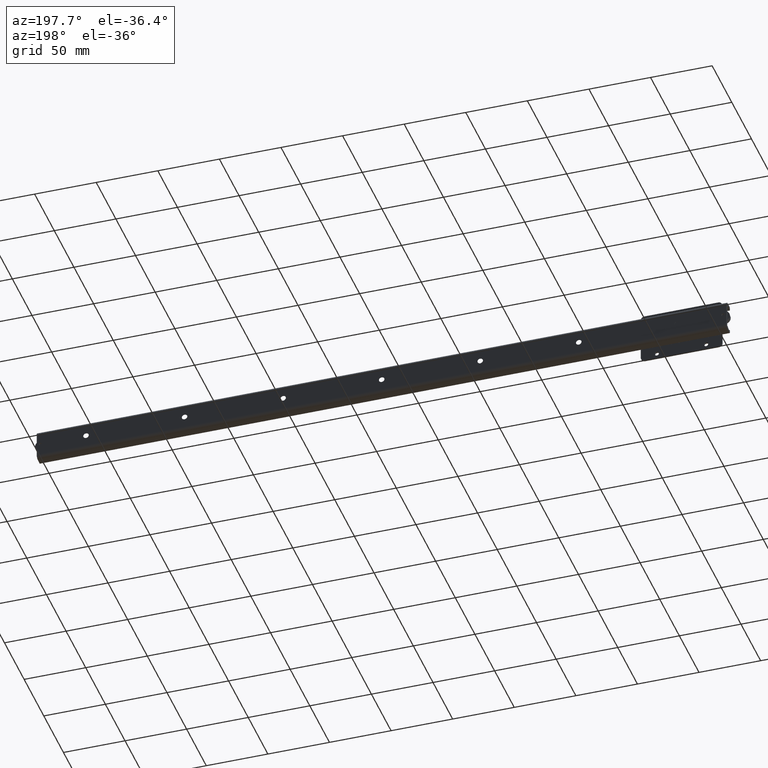
[diagram: clean part render]
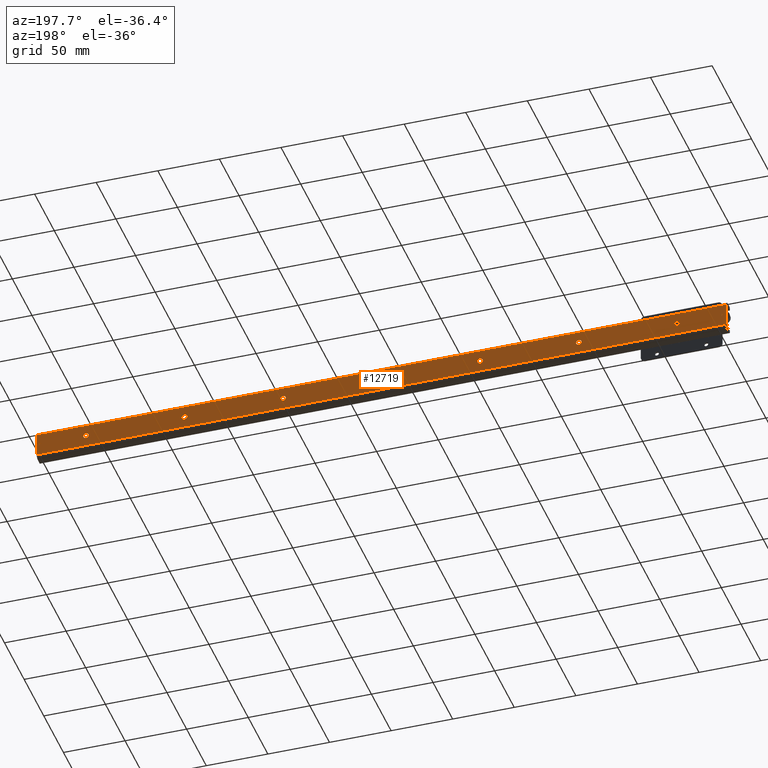
[diagram: same view with one face highlighted and labeled with its STEP entity id]
A machine part, auxiliary view. The second image highlights one B-rep face of the part: STEP entity #12719.
In plain terms, the highlighted face is a freeform B-spline surface patch.
Its self-contained STEP definition (entity closure, byte-faithful):
#9919=CARTESIAN_POINT('',(522.245803296396160,4.791111E-014,-0.137359214821563));
#9920=VERTEX_POINT('',#9919);
#9921=CARTESIAN_POINT('',(520.0,4.790612E-014,2.249999999999975));
#9922=VERTEX_POINT('',#9921);
#9923=CARTESIAN_POINT('',(522.245803296396050,4.790612E-014,-0.137359214821563));
#9924=CARTESIAN_POINT('',(522.250000000000000,4.790612E-014,-0.068743717857109));
#9925=CARTESIAN_POINT('',(522.250000000000000,4.790612E-014,0.0));
#9926=CARTESIAN_POINT('',(522.249999999999890,4.790612E-014,2.249999999999974));
#9927=CARTESIAN_POINT('',(520.0,4.790612E-014,2.249999999999975));
#9935=(BOUNDED_CURVE()B_SPLINE_CURVE(2,(#9923,#9924,#9925,#9926,#9927),.UNSPECIFIED.,.F.,.U.)B_SPLINE_CURVE_WITH_KNOTS((3,2,3),(0.239332962175269,0.250000000000000,0.500000000000000),.UNSPECIFIED.)CURVE()GEOMETRIC_REPRESENTATION_ITEM()RATIONAL_B_SPLINE_CURVE((0.976072041530252,0.987502787825238,1.0,0.707106781186548,1.0))REPRESENTATION_ITEM(''));
#9936=EDGE_CURVE('',#9920,#9922,#9935,.T.);
#9977=CARTESIAN_POINT('',(517.754196703603950,4.791111E-014,0.137359214821563));
#9978=VERTEX_POINT('',#9977);
#9984=CARTESIAN_POINT('',(520.0,4.790612E-014,2.249999999999975));
#9985=CARTESIAN_POINT('',(517.883411350281900,4.790612E-014,2.249999999999974));
#9986=CARTESIAN_POINT('',(517.754196703603950,4.790612E-014,0.137359214821562));
#9994=(BOUNDED_CURVE()B_SPLINE_CURVE(2,(#9984,#9985,#9986),.UNSPECIFIED.,.F.,.U.)B_SPLINE_CURVE_WITH_KNOTS((3,3),(0.500000000000000,0.739332962175269),.UNSPECIFIED.)CURVE()GEOMETRIC_REPRESENTATION_ITEM()RATIONAL_B_SPLINE_CURVE((1.0,0.719603993361309,0.976072041530252))REPRESENTATION_ITEM(''));
#9995=EDGE_CURVE('',#9922,#9978,#9994,.T.);
#10018=CARTESIAN_POINT('',(520.0,4.790612E-014,-2.249999999999975));
#10019=VERTEX_POINT('',#10018);
#10020=CARTESIAN_POINT('',(520.0,4.790612E-014,-2.249999999999975));
#10021=CARTESIAN_POINT('',(522.116588649718100,4.790612E-014,-2.249999999999975));
#10022=CARTESIAN_POINT('',(522.245803296396050,4.790612E-014,-0.137359214821556));
#10030=(BOUNDED_CURVE()B_SPLINE_CURVE(2,(#10020,#10021,#10022),.UNSPECIFIED.,.F.,.U.)B_SPLINE_CURVE_WITH_KNOTS((3,3),(0.0,0.239332962175269),.UNSPECIFIED.)CURVE()GEOMETRIC_REPRESENTATION_ITEM()RATIONAL_B_SPLINE_CURVE((1.0,0.719603993361309,0.976072041530253))REPRESENTATION_ITEM(''));
#10031=EDGE_CURVE('',#10019,#9920,#10030,.T.);
#10033=CARTESIAN_POINT('',(517.754196703603950,4.790612E-014,0.137359214821562));
#10034=CARTESIAN_POINT('',(517.750000000000000,4.790612E-014,0.068743717857109));
#10035=CARTESIAN_POINT('',(517.750000000000000,4.790612E-014,0.0));
#10036=CARTESIAN_POINT('',(517.750000000000000,4.790612E-014,-2.249999999999974));
#10037=CARTESIAN_POINT('',(520.0,4.790612E-014,-2.249999999999975));
#10045=(BOUNDED_CURVE()B_SPLINE_CURVE(2,(#10033,#10034,#10035,#10036,#10037),.UNSPECIFIED.,.F.,.U.)B_SPLINE_CURVE_WITH_KNOTS((3,2,3),(0.739332962175269,0.750000000000000,1.0),.UNSPECIFIED.)CURVE()GEOMETRIC_REPRESENTATION_ITEM()RATIONAL_B_SPLINE_CURVE((0.976072041530252,0.987502787825238,1.0,0.707106781186548,1.0))REPRESENTATION_ITEM(''));
#10046=EDGE_CURVE('',#9978,#10019,#10045,.T.);
#10223=CARTESIAN_POINT('',(442.245803296396100,4.790244E-014,-0.137359214821558));
#10224=VERTEX_POINT('',#10223);
#10225=CARTESIAN_POINT('',(440.0,4.790612E-014,2.249999999999975));
#10226=VERTEX_POINT('',#10225);
#10227=CARTESIAN_POINT('',(442.245803296396160,4.790612E-014,-0.137359214821558));
#10228=CARTESIAN_POINT('',(442.250000000000060,4.790612E-014,-0.068743717857107));
#10229=CARTESIAN_POINT('',(442.250000000000000,4.790612E-014,0.0));
#10230=CARTESIAN_POINT('',(442.249999999999890,4.790612E-014,2.249999999999974));
#10231=CARTESIAN_POINT('',(440.0,4.790612E-014,2.249999999999975));
#10239=(BOUNDED_CURVE()B_SPLINE_CURVE(2,(#10227,#10228,#10229,#10230,#10231),.UNSPECIFIED.,.F.,.U.)B_SPLINE_CURVE_WITH_KNOTS((3,2,3),(0.239332962175269,0.250000000000000,0.500000000000000),.UNSPECIFIED.)CURVE()GEOMETRIC_REPRESENTATION_ITEM()RATIONAL_B_SPLINE_CURVE((0.976072041530253,0.987502787825239,1.0,0.707106781186548,1.0))REPRESENTATION_ITEM(''));
#10240=EDGE_CURVE('',#10224,#10226,#10239,.T.);
#10281=CARTESIAN_POINT('',(437.754196703603900,4.791111E-014,0.137359214821562));
#10282=VERTEX_POINT('',#10281);
#10288=CARTESIAN_POINT('',(440.0,4.790612E-014,2.249999999999975));
#10289=CARTESIAN_POINT('',(437.883411350282020,4.790612E-014,2.249999999999974));
#10290=CARTESIAN_POINT('',(437.754196703603950,4.790612E-014,0.137359214821562));
#10298=(BOUNDED_CURVE()B_SPLINE_CURVE(2,(#10288,#10289,#10290),.UNSPECIFIED.,.F.,.U.)B_SPLINE_CURVE_WITH_KNOTS((3,3),(0.500000000000000,0.739332962175269),.UNSPECIFIED.)CURVE()GEOMETRIC_REPRESENTATION_ITEM()RATIONAL_B_SPLINE_CURVE((1.0,0.719603993361309,0.976072041530252))REPRESENTATION_ITEM(''));
#10299=EDGE_CURVE('',#10226,#10282,#10298,.T.);
#10322=CARTESIAN_POINT('',(440.0,4.790612E-014,-2.249999999999975));
#10323=VERTEX_POINT('',#10322);
#10324=CARTESIAN_POINT('',(440.0,4.790612E-014,-2.249999999999975));
#10325=CARTESIAN_POINT('',(442.116588649718100,4.790612E-014,-2.249999999999976));
#10326=CARTESIAN_POINT('',(442.245803296396160,4.790612E-014,-0.137359214821558));
#10334=(BOUNDED_CURVE()B_SPLINE_CURVE(2,(#10324,#10325,#10326),.UNSPECIFIED.,.F.,.U.)B_SPLINE_CURVE_WITH_KNOTS((3,3),(0.0,0.239332962175269),.UNSPECIFIED.)CURVE()GEOMETRIC_REPRESENTATION_ITEM()RATIONAL_B_SPLINE_CURVE((1.0,0.719603993361309,0.976072041530253))REPRESENTATION_ITEM(''));
#10335=EDGE_CURVE('',#10323,#10224,#10334,.T.);
#10337=CARTESIAN_POINT('',(437.754196703603950,4.790612E-014,0.137359214821562));
#10338=CARTESIAN_POINT('',(437.750000000000060,4.790612E-014,0.068743717857109));
#10339=CARTESIAN_POINT('',(437.750000000000000,4.790612E-014,0.0));
#10340=CARTESIAN_POINT('',(437.750000000000170,4.790612E-014,-2.249999999999974));
#10341=CARTESIAN_POINT('',(440.0,4.790612E-014,-2.249999999999975));
#10349=(BOUNDED_CURVE()B_SPLINE_CURVE(2,(#10337,#10338,#10339,#10340,#10341),.UNSPECIFIED.,.F.,.U.)B_SPLINE_CURVE_WITH_KNOTS((3,2,3),(0.739332962175269,0.750000000000000,1.0),.UNSPECIFIED.)CURVE()GEOMETRIC_REPRESENTATION_ITEM()RATIONAL_B_SPLINE_CURVE((0.976072041530252,0.987502787825238,1.0,0.707106781186548,1.0))REPRESENTATION_ITEM(''));
#10350=EDGE_CURVE('',#10282,#10323,#10349,.T.);
#10527=CARTESIAN_POINT('',(362.245803296396100,4.791111E-014,-0.137359214821558));
#10528=VERTEX_POINT('',#10527);
#10529=CARTESIAN_POINT('',(360.0,4.790612E-014,2.249999999999975));
#10530=VERTEX_POINT('',#10529);
#10531=CARTESIAN_POINT('',(362.245803296396100,4.790612E-014,-0.137359214821554));
#10532=CARTESIAN_POINT('',(362.250000000000000,4.790612E-014,-0.068743717857105));
#10533=CARTESIAN_POINT('',(362.249999999999890,4.790612E-014,0.0));
#10534=CARTESIAN_POINT('',(362.249999999999890,4.790612E-014,2.249999999999974));
#10535=CARTESIAN_POINT('',(360.0,4.790612E-014,2.249999999999975));
#10543=(BOUNDED_CURVE()B_SPLINE_CURVE(2,(#10531,#10532,#10533,#10534,#10535),.UNSPECIFIED.,.F.,.U.)B_SPLINE_CURVE_WITH_KNOTS((3,2,3),(0.239332962175269,0.250000000000000,0.500000000000000),.UNSPECIFIED.)CURVE()GEOMETRIC_REPRESENTATION_ITEM()RATIONAL_B_SPLINE_CURVE((0.976072041530253,0.987502787825239,1.0,0.707106781186548,1.0))REPRESENTATION_ITEM(''));
#10544=EDGE_CURVE('',#10528,#10530,#10543,.T.);
#10585=CARTESIAN_POINT('',(357.754196703603900,4.791111E-014,0.137359214821562));
#10586=VERTEX_POINT('',#10585);
#10592=CARTESIAN_POINT('',(360.0,4.790612E-014,2.249999999999975));
#10593=CARTESIAN_POINT('',(357.883411350281960,4.790612E-014,2.249999999999975));
#10594=CARTESIAN_POINT('',(357.754196703603950,4.790612E-014,0.137359214821558));
#10602=(BOUNDED_CURVE()B_SPLINE_CURVE(2,(#10592,#10593,#10594),.UNSPECIFIED.,.F.,.U.)B_SPLINE_CURVE_WITH_KNOTS((3,3),(0.500000000000000,0.739332962175269),.UNSPECIFIED.)CURVE()GEOMETRIC_REPRESENTATION_ITEM()RATIONAL_B_SPLINE_CURVE((1.0,0.719603993361309,0.976072041530253))REPRESENTATION_ITEM(''));
#10603=EDGE_CURVE('',#10530,#10586,#10602,.T.);
#10626=CARTESIAN_POINT('',(360.0,4.790612E-014,-2.249999999999975));
#10627=VERTEX_POINT('',#10626);
#10628=CARTESIAN_POINT('',(360.0,4.790612E-014,-2.249999999999975));
#10629=CARTESIAN_POINT('',(362.116588649718150,4.790612E-014,-2.249999999999976));
#10630=CARTESIAN_POINT('',(362.245803296396100,4.790612E-014,-0.137359214821554));
#10638=(BOUNDED_CURVE()B_SPLINE_CURVE(2,(#10628,#10629,#10630),.UNSPECIFIED.,.F.,.U.)B_SPLINE_CURVE_WITH_KNOTS((3,3),(0.0,0.239332962175269),.UNSPECIFIED.)CURVE()GEOMETRIC_REPRESENTATION_ITEM()RATIONAL_B_SPLINE_CURVE((1.0,0.719603993361308,0.976072041530253))REPRESENTATION_ITEM(''));
#10639=EDGE_CURVE('',#10627,#10528,#10638,.T.);
#10641=CARTESIAN_POINT('',(357.754196703603950,4.790612E-014,0.137359214821558));
#10642=CARTESIAN_POINT('',(357.750000000000000,4.790612E-014,0.068743717857107));
#10643=CARTESIAN_POINT('',(357.750000000000000,4.790612E-014,0.0));
#10644=CARTESIAN_POINT('',(357.750000000000000,4.790612E-014,-2.249999999999974));
#10645=CARTESIAN_POINT('',(360.0,4.790612E-014,-2.249999999999975));
#10653=(BOUNDED_CURVE()B_SPLINE_CURVE(2,(#10641,#10642,#10643,#10644,#10645),.UNSPECIFIED.,.F.,.U.)B_SPLINE_CURVE_WITH_KNOTS((3,2,3),(0.739332962175269,0.750000000000000,1.0),.UNSPECIFIED.)CURVE()GEOMETRIC_REPRESENTATION_ITEM()RATIONAL_B_SPLINE_CURVE((0.976072041530253,0.987502787825239,1.0,0.707106781186548,1.0))REPRESENTATION_ITEM(''));
#10654=EDGE_CURVE('',#10586,#10627,#10653,.T.);
#10831=CARTESIAN_POINT('',(282.245803296396100,4.791111E-014,-0.137359214821559));
#10832=VERTEX_POINT('',#10831);
#10833=CARTESIAN_POINT('',(280.0,4.790612E-014,2.249999999999975));
#10834=VERTEX_POINT('',#10833);
#10835=CARTESIAN_POINT('',(282.245803296396050,4.790612E-014,-0.137359214821556));
#10836=CARTESIAN_POINT('',(282.250000000000000,4.790612E-014,-0.068743717857106));
#10837=CARTESIAN_POINT('',(282.250000000000000,4.790612E-014,0.0));
#10838=CARTESIAN_POINT('',(282.250000000000060,4.790612E-014,2.249999999999974));
#10839=CARTESIAN_POINT('',(280.0,4.790612E-014,2.249999999999975));
#10847=(BOUNDED_CURVE()B_SPLINE_CURVE(2,(#10835,#10836,#10837,#10838,#10839),.UNSPECIFIED.,.F.,.U.)B_SPLINE_CURVE_WITH_KNOTS((3,2,3),(0.239332962175269,0.250000000000000,0.500000000000000),.UNSPECIFIED.)CURVE()GEOMETRIC_REPRESENTATION_ITEM()RATIONAL_B_SPLINE_CURVE((0.976072041530253,0.987502787825239,1.0,0.707106781186548,1.0))REPRESENTATION_ITEM(''));
#10848=EDGE_CURVE('',#10832,#10834,#10847,.T.);
#10889=CARTESIAN_POINT('',(277.754196703604010,4.791111E-014,0.137359214821559));
#10890=VERTEX_POINT('',#10889);
#10896=CARTESIAN_POINT('',(280.0,4.790612E-014,2.249999999999975));
#10897=CARTESIAN_POINT('',(277.883411350281900,4.790612E-014,2.249999999999976));
#10898=CARTESIAN_POINT('',(277.754196703603950,4.790612E-014,0.137359214821559));
#10906=(BOUNDED_CURVE()B_SPLINE_CURVE(2,(#10896,#10897,#10898),.UNSPECIFIED.,.F.,.U.)B_SPLINE_CURVE_WITH_KNOTS((3,3),(0.500000000000000,0.739332962175269),.UNSPECIFIED.)CURVE()GEOMETRIC_REPRESENTATION_ITEM()RATIONAL_B_SPLINE_CURVE((1.0,0.719603993361309,0.976072041530253))REPRESENTATION_ITEM(''));
#10907=EDGE_CURVE('',#10834,#10890,#10906,.T.);
#10930=CARTESIAN_POINT('',(280.0,4.790612E-014,-2.249999999999975));
#10931=VERTEX_POINT('',#10930);
#10932=CARTESIAN_POINT('',(280.0,4.790612E-014,-2.249999999999975));
#10933=CARTESIAN_POINT('',(282.116588649718150,4.790612E-014,-2.249999999999975));
#10934=CARTESIAN_POINT('',(282.245803296396050,4.790612E-014,-0.137359214821556));
#10942=(BOUNDED_CURVE()B_SPLINE_CURVE(2,(#10932,#10933,#10934),.UNSPECIFIED.,.F.,.U.)B_SPLINE_CURVE_WITH_KNOTS((3,3),(0.0,0.239332962175269),.UNSPECIFIED.)CURVE()GEOMETRIC_REPRESENTATION_ITEM()RATIONAL_B_SPLINE_CURVE((1.0,0.719603993361309,0.976072041530253))REPRESENTATION_ITEM(''));
#10943=EDGE_CURVE('',#10931,#10832,#10942,.T.);
#10945=CARTESIAN_POINT('',(277.754196703603950,4.790612E-014,0.137359214821559));
#10946=CARTESIAN_POINT('',(277.750000000000000,4.790612E-014,0.068743717857108));
#10947=CARTESIAN_POINT('',(277.750000000000110,4.790612E-014,0.0));
#10948=CARTESIAN_POINT('',(277.750000000000000,4.790612E-014,-2.249999999999974));
#10949=CARTESIAN_POINT('',(280.0,4.790612E-014,-2.249999999999975));
#10957=(BOUNDED_CURVE()B_SPLINE_CURVE(2,(#10945,#10946,#10947,#10948,#10949),.UNSPECIFIED.,.F.,.U.)B_SPLINE_CURVE_WITH_KNOTS((3,2,3),(0.739332962175269,0.750000000000000,1.0),.UNSPECIFIED.)CURVE()GEOMETRIC_REPRESENTATION_ITEM()RATIONAL_B_SPLINE_CURVE((0.976072041530253,0.987502787825239,1.0,0.707106781186548,1.0))REPRESENTATION_ITEM(''));
#10958=EDGE_CURVE('',#10890,#10931,#10957,.T.);
#11135=CARTESIAN_POINT('',(3.0,0.0,1.150000000000000));
#11136=VERTEX_POINT('',#11135);
#11137=CARTESIAN_POINT('',(1.853545107281130,8.326673E-017,0.090228481981517));
#11138=VERTEX_POINT('',#11137);
#11139=CARTESIAN_POINT('',(3.0,0.0,1.150000000000000));
#11140=CARTESIAN_POINT('',(1.936951420015464,0.0,1.150000000000000));
#11141=CARTESIAN_POINT('',(1.853545107281011,0.0,0.090228481981526));
#11149=(BOUNDED_CURVE()B_SPLINE_CURVE(2,(#11139,#11140,#11141),.UNSPECIFIED.,.F.,.U.)B_SPLINE_CURVE_WITH_KNOTS((3,3),(0.0,0.236331222596125),.UNSPECIFIED.)CURVE()GEOMETRIC_REPRESENTATION_ITEM()RATIONAL_B_SPLINE_CURVE((1.0,0.723120750030810,0.969723193315353))REPRESENTATION_ITEM(''));
#11150=EDGE_CURVE('',#11136,#11138,#11149,.T.);
#11152=CARTESIAN_POINT('',(4.146454892718871,8.326673E-017,-0.090228481981517));
#11153=VERTEX_POINT('',#11152);
#11154=CARTESIAN_POINT('',(4.146454892718871,8.326673E-017,-0.090228481981517));
#11155=CARTESIAN_POINT('',(4.150000000000000,0.0,-0.045183885217053));
#11156=CARTESIAN_POINT('',(4.150000000000000,0.0,0.0));
#11157=CARTESIAN_POINT('',(4.150000000000000,0.0,1.150000000000000));
#11158=CARTESIAN_POINT('',(3.0,0.0,1.150000000000000));
#11166=(BOUNDED_CURVE()B_SPLINE_CURVE(2,(#11154,#11155,#11156,#11157,#11158),.UNSPECIFIED.,.F.,.U.)B_SPLINE_CURVE_WITH_KNOTS((3,2,3),(0.736331222596125,0.750000000000000,1.0),.UNSPECIFIED.)CURVE()GEOMETRIC_REPRESENTATION_ITEM()RATIONAL_B_SPLINE_CURVE((0.969723193315353,0.983986031155737,1.0,0.707106781186547,1.0))REPRESENTATION_ITEM(''));
#11167=EDGE_CURVE('',#11153,#11136,#11166,.T.);
#11234=CARTESIAN_POINT('',(3.0,0.0,-1.150000000000000));
#11235=VERTEX_POINT('',#11234);
#11236=CARTESIAN_POINT('',(1.853545107281129,8.326673E-017,0.090228481981517));
#11237=CARTESIAN_POINT('',(1.850000000000001,0.0,0.045183885217053));
#11238=CARTESIAN_POINT('',(1.850000000000000,0.0,0.0));
#11239=CARTESIAN_POINT('',(1.850000000000000,0.0,-1.150000000000000));
#11240=CARTESIAN_POINT('',(3.0,0.0,-1.150000000000000));
#11248=(BOUNDED_CURVE()B_SPLINE_CURVE(2,(#11236,#11237,#11238,#11239,#11240),.UNSPECIFIED.,.F.,.U.)B_SPLINE_CURVE_WITH_KNOTS((3,2,3),(0.236331222596125,0.250000000000000,0.500000000000000),.UNSPECIFIED.)CURVE()GEOMETRIC_REPRESENTATION_ITEM()RATIONAL_B_SPLINE_CURVE((0.969723193315353,0.983986031155737,1.0,0.707106781186547,1.0))REPRESENTATION_ITEM(''));
#11249=EDGE_CURVE('',#11138,#11235,#11248,.T.);
#11283=CARTESIAN_POINT('',(3.0,0.0,-1.150000000000000));
#11284=CARTESIAN_POINT('',(4.063048579984535,0.0,-1.150000000000000));
#11285=CARTESIAN_POINT('',(4.146454892718990,0.0,-0.090228481981527));
#11293=(BOUNDED_CURVE()B_SPLINE_CURVE(2,(#11283,#11284,#11285),.UNSPECIFIED.,.F.,.U.)B_SPLINE_CURVE_WITH_KNOTS((3,3),(0.500000000000000,0.736331222596125),.UNSPECIFIED.)CURVE()GEOMETRIC_REPRESENTATION_ITEM()RATIONAL_B_SPLINE_CURVE((1.0,0.723120750030810,0.969723193315353))REPRESENTATION_ITEM(''));
#11294=EDGE_CURVE('',#11235,#11153,#11293,.T.);
#11317=CARTESIAN_POINT('',(557.0,0.0,1.150000000000000));
#11318=VERTEX_POINT('',#11317);
#11319=CARTESIAN_POINT('',(555.853545107281210,8.326673E-017,0.090228481981516));
#11320=VERTEX_POINT('',#11319);
#11321=CARTESIAN_POINT('',(557.0,0.0,1.150000000000000));
#11322=CARTESIAN_POINT('',(555.936951420015590,0.0,1.150000000000000));
#11323=CARTESIAN_POINT('',(555.853545107280980,0.0,0.090228481981534));
#11331=(BOUNDED_CURVE()B_SPLINE_CURVE(2,(#11321,#11322,#11323),.UNSPECIFIED.,.F.,.U.)B_SPLINE_CURVE_WITH_KNOTS((3,3),(0.0,0.236331222596123),.UNSPECIFIED.)CURVE()GEOMETRIC_REPRESENTATION_ITEM()RATIONAL_B_SPLINE_CURVE((1.0,0.723120750030811,0.969723193315351))REPRESENTATION_ITEM(''));
#11332=EDGE_CURVE('',#11318,#11320,#11331,.T.);
#11334=CARTESIAN_POINT('',(558.146454892718910,8.326673E-017,-0.090228481981525));
#11335=VERTEX_POINT('',#11334);
#11336=CARTESIAN_POINT('',(558.146454892719020,0.0,-0.090228481981534));
#11337=CARTESIAN_POINT('',(558.150000000000090,0.0,-0.045183885217057));
#11338=CARTESIAN_POINT('',(558.150000000000090,0.0,0.0));
#11339=CARTESIAN_POINT('',(558.149999999999980,0.0,1.150000000000000));
#11340=CARTESIAN_POINT('',(557.0,0.0,1.150000000000000));
#11348=(BOUNDED_CURVE()B_SPLINE_CURVE(2,(#11336,#11337,#11338,#11339,#11340),.UNSPECIFIED.,.F.,.U.)B_SPLINE_CURVE_WITH_KNOTS((3,2,3),(0.736331222596123,0.750000000000000,1.0),.UNSPECIFIED.)CURVE()GEOMETRIC_REPRESENTATION_ITEM()RATIONAL_B_SPLINE_CURVE((0.969723193315351,0.983986031155736,1.0,0.707106781186547,1.0))REPRESENTATION_ITEM(''));
#11349=EDGE_CURVE('',#11335,#11318,#11348,.T.);
#11416=CARTESIAN_POINT('',(557.0,0.0,-1.150000000000000));
#11417=VERTEX_POINT('',#11416);
#11418=CARTESIAN_POINT('',(555.853545107280980,0.0,0.090228481981534));
#11419=CARTESIAN_POINT('',(555.850000000000020,0.0,0.045183885217057));
#11420=CARTESIAN_POINT('',(555.850000000000020,0.0,0.0));
#11421=CARTESIAN_POINT('',(555.850000000000140,0.0,-1.150000000000000));
#11422=CARTESIAN_POINT('',(557.0,0.0,-1.150000000000000));
#11430=(BOUNDED_CURVE()B_SPLINE_CURVE(2,(#11418,#11419,#11420,#11421,#11422),.UNSPECIFIED.,.F.,.U.)B_SPLINE_CURVE_WITH_KNOTS((3,2,3),(0.236331222596123,0.250000000000000,0.500000000000000),.UNSPECIFIED.)CURVE()GEOMETRIC_REPRESENTATION_ITEM()RATIONAL_B_SPLINE_CURVE((0.969723193315351,0.983986031155736,1.0,0.707106781186547,1.0))REPRESENTATION_ITEM(''));
#11431=EDGE_CURVE('',#11320,#11417,#11430,.T.);
#11465=CARTESIAN_POINT('',(557.0,0.0,-1.150000000000000));
#11466=CARTESIAN_POINT('',(558.063048579984750,0.0,-1.150000000000000));
#11467=CARTESIAN_POINT('',(558.146454892719020,0.0,-0.090228481981534));
#11475=(BOUNDED_CURVE()B_SPLINE_CURVE(2,(#11465,#11466,#11467),.UNSPECIFIED.,.F.,.U.)B_SPLINE_CURVE_WITH_KNOTS((3,3),(0.500000000000000,0.736331222596123),.UNSPECIFIED.)CURVE()GEOMETRIC_REPRESENTATION_ITEM()RATIONAL_B_SPLINE_CURVE((1.0,0.723120750030811,0.969723193315351))REPRESENTATION_ITEM(''));
#11476=EDGE_CURVE('',#11417,#11335,#11475,.T.);
#11499=CARTESIAN_POINT('',(42.245803296396112,2.990627E-014,-0.137359214821561));
#11500=VERTEX_POINT('',#11499);
#11501=CARTESIAN_POINT('',(40.0,2.990027E-014,2.250000000000000));
#11502=VERTEX_POINT('',#11501);
#11503=CARTESIAN_POINT('',(42.245803296396112,2.990027E-014,-0.137359214821561));
#11504=CARTESIAN_POINT('',(42.250000000000000,2.990027E-014,-0.068743717857108));
#11505=CARTESIAN_POINT('',(42.250000000000000,2.990027E-014,0.0));
#11506=CARTESIAN_POINT('',(42.250000000000000,2.990027E-014,2.250000000000000));
#11507=CARTESIAN_POINT('',(40.0,2.990027E-014,2.250000000000000));
#11515=(BOUNDED_CURVE()B_SPLINE_CURVE(2,(#11503,#11504,#11505,#11506,#11507),.UNSPECIFIED.,.F.,.U.)B_SPLINE_CURVE_WITH_KNOTS((3,2,3),(0.239332962175269,0.250000000000000,0.500000000000000),.UNSPECIFIED.)CURVE()GEOMETRIC_REPRESENTATION_ITEM()RATIONAL_B_SPLINE_CURVE((0.976072041530252,0.987502787825239,1.0,0.707106781186547,1.0))REPRESENTATION_ITEM(''));
#11516=EDGE_CURVE('',#11500,#11502,#11515,.T.);
#11557=CARTESIAN_POINT('',(37.754196703603903,2.990584E-014,0.137359214821562));
#11558=VERTEX_POINT('',#11557);
#11564=CARTESIAN_POINT('',(40.0,2.990027E-014,2.250000000000000));
#11565=CARTESIAN_POINT('',(37.883411350281897,2.990027E-014,2.250000000000000));
#11566=CARTESIAN_POINT('',(37.754196703603895,2.990027E-014,0.137359214821562));
#11574=(BOUNDED_CURVE()B_SPLINE_CURVE(2,(#11564,#11565,#11566),.UNSPECIFIED.,.F.,.U.)B_SPLINE_CURVE_WITH_KNOTS((3,3),(0.500000000000000,0.739332962175269),.UNSPECIFIED.)CURVE()GEOMETRIC_REPRESENTATION_ITEM()RATIONAL_B_SPLINE_CURVE((1.0,0.719603993361309,0.976072041530252))REPRESENTATION_ITEM(''));
#11575=EDGE_CURVE('',#11502,#11558,#11574,.T.);
#11598=CARTESIAN_POINT('',(40.0,2.990027E-014,-2.250000000000000));
#11599=VERTEX_POINT('',#11598);
#11600=CARTESIAN_POINT('',(40.0,2.990027E-014,-2.250000000000000));
#11601=CARTESIAN_POINT('',(42.116588649718089,2.990027E-014,-2.250000000000000));
#11602=CARTESIAN_POINT('',(42.245803296396112,2.990027E-014,-0.137359214821561));
#11610=(BOUNDED_CURVE()B_SPLINE_CURVE(2,(#11600,#11601,#11602),.UNSPECIFIED.,.F.,.U.)B_SPLINE_CURVE_WITH_KNOTS((3,3),(0.0,0.239332962175269),.UNSPECIFIED.)CURVE()GEOMETRIC_REPRESENTATION_ITEM()RATIONAL_B_SPLINE_CURVE((1.0,0.719603993361309,0.976072041530252))REPRESENTATION_ITEM(''));
#11611=EDGE_CURVE('',#11599,#11500,#11610,.T.);
#11613=CARTESIAN_POINT('',(37.754196703603895,2.990027E-014,0.137359214821562));
#11614=CARTESIAN_POINT('',(37.750000000000007,2.990027E-014,0.068743717857109));
#11615=CARTESIAN_POINT('',(37.750000000000000,2.990027E-014,0.0));
#11616=CARTESIAN_POINT('',(37.750000000000007,2.990027E-014,-2.250000000000000));
#11617=CARTESIAN_POINT('',(40.0,2.990027E-014,-2.250000000000000));
#11625=(BOUNDED_CURVE()B_SPLINE_CURVE(2,(#11613,#11614,#11615,#11616,#11617),.UNSPECIFIED.,.F.,.U.)B_SPLINE_CURVE_WITH_KNOTS((3,2,3),(0.739332962175269,0.750000000000000,1.0),.UNSPECIFIED.)CURVE()GEOMETRIC_REPRESENTATION_ITEM()RATIONAL_B_SPLINE_CURVE((0.976072041530252,0.987502787825239,1.0,0.707106781186547,1.0))REPRESENTATION_ITEM(''));
#11626=EDGE_CURVE('',#11558,#11599,#11625,.T.);
#11803=CARTESIAN_POINT('',(122.245803296396100,3.875358E-014,-0.137359214821561));
#11804=VERTEX_POINT('',#11803);
#11805=CARTESIAN_POINT('',(120.0,3.875517E-014,2.250000000000000));
#11806=VERTEX_POINT('',#11805);
#11807=CARTESIAN_POINT('',(122.245803296396080,3.875517E-014,-0.137359214821560));
#11808=CARTESIAN_POINT('',(122.249999999999940,3.875517E-014,-0.068743717857108));
#11809=CARTESIAN_POINT('',(122.250000000000000,3.875517E-014,0.0));
#11810=CARTESIAN_POINT('',(122.250000000000000,3.875517E-014,2.250000000000000));
#11811=CARTESIAN_POINT('',(120.0,3.875517E-014,2.250000000000000));
#11819=(BOUNDED_CURVE()B_SPLINE_CURVE(2,(#11807,#11808,#11809,#11810,#11811),.UNSPECIFIED.,.F.,.U.)B_SPLINE_CURVE_WITH_KNOTS((3,2,3),(0.239332962175269,0.250000000000000,0.500000000000000),.UNSPECIFIED.)CURVE()GEOMETRIC_REPRESENTATION_ITEM()RATIONAL_B_SPLINE_CURVE((0.976072041530253,0.987502787825239,1.0,0.707106781186547,1.0))REPRESENTATION_ITEM(''));
#11820=EDGE_CURVE('',#11804,#11806,#11819,.T.);
#11861=CARTESIAN_POINT('',(117.754196703603900,3.875336E-014,0.137359214821562));
#11862=VERTEX_POINT('',#11861);
#11868=CARTESIAN_POINT('',(120.0,3.875517E-014,2.250000000000000));
#11869=CARTESIAN_POINT('',(117.883411350281890,3.875517E-014,2.250000000000000));
#11870=CARTESIAN_POINT('',(117.754196703603950,3.875517E-014,0.137359214821562));
#11878=(BOUNDED_CURVE()B_SPLINE_CURVE(2,(#11868,#11869,#11870),.UNSPECIFIED.,.F.,.U.)B_SPLINE_CURVE_WITH_KNOTS((3,3),(0.500000000000000,0.739332962175269),.UNSPECIFIED.)CURVE()GEOMETRIC_REPRESENTATION_ITEM()RATIONAL_B_SPLINE_CURVE((1.0,0.719603993361309,0.976072041530252))REPRESENTATION_ITEM(''));
#11879=EDGE_CURVE('',#11806,#11862,#11878,.T.);
#11902=CARTESIAN_POINT('',(120.0,3.875517E-014,-2.250000000000000));
#11903=VERTEX_POINT('',#11902);
#11904=CARTESIAN_POINT('',(120.0,3.875517E-014,-2.250000000000000));
#11905=CARTESIAN_POINT('',(122.116588649718080,3.875517E-014,-2.250000000000000));
#11906=CARTESIAN_POINT('',(122.245803296396130,3.875517E-014,-0.137359214821562));
#11914=(BOUNDED_CURVE()B_SPLINE_CURVE(2,(#11904,#11905,#11906),.UNSPECIFIED.,.F.,.U.)B_SPLINE_CURVE_WITH_KNOTS((3,3),(0.0,0.239332962175269),.UNSPECIFIED.)CURVE()GEOMETRIC_REPRESENTATION_ITEM()RATIONAL_B_SPLINE_CURVE((1.0,0.719603993361309,0.976072041530252))REPRESENTATION_ITEM(''));
#11915=EDGE_CURVE('',#11903,#11804,#11914,.T.);
#11917=CARTESIAN_POINT('',(117.754196703603950,3.875517E-014,0.137359214821562));
#11918=CARTESIAN_POINT('',(117.750000000000060,3.875517E-014,0.068743717857109));
#11919=CARTESIAN_POINT('',(117.750000000000000,3.875517E-014,0.0));
#11920=CARTESIAN_POINT('',(117.750000000000000,3.875517E-014,-2.250000000000000));
#11921=CARTESIAN_POINT('',(120.0,3.875517E-014,-2.250000000000000));
#11929=(BOUNDED_CURVE()B_SPLINE_CURVE(2,(#11917,#11918,#11919,#11920,#11921),.UNSPECIFIED.,.F.,.U.)B_SPLINE_CURVE_WITH_KNOTS((3,2,3),(0.739332962175269,0.750000000000000,1.0),.UNSPECIFIED.)CURVE()GEOMETRIC_REPRESENTATION_ITEM()RATIONAL_B_SPLINE_CURVE((0.976072041530252,0.987502787825239,1.0,0.707106781186547,1.0))REPRESENTATION_ITEM(''));
#11930=EDGE_CURVE('',#11862,#11903,#11929,.T.);
#12107=CARTESIAN_POINT('',(202.245803296396100,4.790699E-014,-0.137359214821561));
#12108=VERTEX_POINT('',#12107);
#12109=CARTESIAN_POINT('',(200.0,4.790612E-014,2.250000000000000));
#12110=VERTEX_POINT('',#12109);
#12111=CARTESIAN_POINT('',(202.245803296396100,4.790612E-014,-0.137359214821561));
#12112=CARTESIAN_POINT('',(202.250000000000090,4.790612E-014,-0.068743717857108));
#12113=CARTESIAN_POINT('',(202.250000000000000,4.790612E-014,0.0));
#12114=CARTESIAN_POINT('',(202.249999999999970,4.790612E-014,2.250000000000000));
#12115=CARTESIAN_POINT('',(200.0,4.790612E-014,2.250000000000000));
#12123=(BOUNDED_CURVE()B_SPLINE_CURVE(2,(#12111,#12112,#12113,#12114,#12115),.UNSPECIFIED.,.F.,.U.)B_SPLINE_CURVE_WITH_KNOTS((3,2,3),(0.239332962175269,0.250000000000000,0.500000000000000),.UNSPECIFIED.)CURVE()GEOMETRIC_REPRESENTATION_ITEM()RATIONAL_B_SPLINE_CURVE((0.976072041530252,0.987502787825239,1.0,0.707106781186547,1.0))REPRESENTATION_ITEM(''));
#12124=EDGE_CURVE('',#12108,#12110,#12123,.T.);
#12165=CARTESIAN_POINT('',(197.754196703603900,4.790699E-014,0.137359214821562));
#12166=VERTEX_POINT('',#12165);
#12172=CARTESIAN_POINT('',(200.0,4.790612E-014,2.250000000000000));
#12173=CARTESIAN_POINT('',(197.883411350281880,4.790612E-014,2.250000000000000));
#12174=CARTESIAN_POINT('',(197.754196703603870,4.790612E-014,0.137359214821562));
#12182=(BOUNDED_CURVE()B_SPLINE_CURVE(2,(#12172,#12173,#12174),.UNSPECIFIED.,.F.,.U.)B_SPLINE_CURVE_WITH_KNOTS((3,3),(0.500000000000000,0.739332962175269),.UNSPECIFIED.)CURVE()GEOMETRIC_REPRESENTATION_ITEM()RATIONAL_B_SPLINE_CURVE((1.0,0.719603993361309,0.976072041530252))REPRESENTATION_ITEM(''));
#12183=EDGE_CURVE('',#12110,#12166,#12182,.T.);
#12206=CARTESIAN_POINT('',(200.0,4.790612E-014,-2.250000000000000));
#12207=VERTEX_POINT('',#12206);
#12208=CARTESIAN_POINT('',(200.0,4.790612E-014,-2.250000000000000));
#12209=CARTESIAN_POINT('',(202.116588649718070,4.790612E-014,-2.250000000000000));
#12210=CARTESIAN_POINT('',(202.245803296396100,4.790612E-014,-0.137359214821561));
#12218=(BOUNDED_CURVE()B_SPLINE_CURVE(2,(#12208,#12209,#12210),.UNSPECIFIED.,.F.,.U.)B_SPLINE_CURVE_WITH_KNOTS((3,3),(0.0,0.239332962175269),.UNSPECIFIED.)CURVE()GEOMETRIC_REPRESENTATION_ITEM()RATIONAL_B_SPLINE_CURVE((1.0,0.719603993361309,0.976072041530252))REPRESENTATION_ITEM(''));
#12219=EDGE_CURVE('',#12207,#12108,#12218,.T.);
#12221=CARTESIAN_POINT('',(197.754196703603870,4.790612E-014,0.137359214821562));
#12222=CARTESIAN_POINT('',(197.749999999999970,4.790612E-014,0.068743717857109));
#12223=CARTESIAN_POINT('',(197.750000000000000,4.790612E-014,0.0));
#12224=CARTESIAN_POINT('',(197.750000000000060,4.790612E-014,-2.250000000000000));
#12225=CARTESIAN_POINT('',(200.0,4.790612E-014,-2.250000000000000));
#12233=(BOUNDED_CURVE()B_SPLINE_CURVE(2,(#12221,#12222,#12223,#12224,#12225),.UNSPECIFIED.,.F.,.U.)B_SPLINE_CURVE_WITH_KNOTS((3,2,3),(0.739332962175269,0.750000000000000,1.0),.UNSPECIFIED.)CURVE()GEOMETRIC_REPRESENTATION_ITEM()RATIONAL_B_SPLINE_CURVE((0.976072041530252,0.987502787825239,1.0,0.707106781186547,1.0))REPRESENTATION_ITEM(''));
#12234=EDGE_CURVE('',#12166,#12207,#12233,.T.);
#12599=CARTESIAN_POINT('',(0.0,1.421085E-014,-9.500000000119091));
#12600=VERTEX_POINT('',#12599);
#12614=CARTESIAN_POINT('',(560.0,1.421085E-014,-9.500000000119091));
#12615=VERTEX_POINT('',#12614);
#12616=CARTESIAN_POINT('',(560.0,1.421085E-014,-9.500000000119091));
#12617=CARTESIAN_POINT('',(0.0,1.421085E-014,-9.500000000119091));
#12618=QUASI_UNIFORM_CURVE('',1,(#12616,#12617),.UNSPECIFIED.,.F.,.U.);
#12619=EDGE_CURVE('',#12615,#12600,#12618,.T.);
#12638=CARTESIAN_POINT('',(-27.971998914611291,-1.421085E-014,-10.449049963293410));
#12639=CARTESIAN_POINT('',(-27.971998914611291,-1.421085E-014,10.449050472674941));
#12640=CARTESIAN_POINT('',(587.972013934981760,-1.421085E-014,-10.449049963293410));
#12641=CARTESIAN_POINT('',(587.972013934981760,-1.421085E-014,10.449050472674941));
#12642=B_SPLINE_SURFACE_WITH_KNOTS('',1,1,((#12638,#12640),(#12639,#12641)),.UNSPECIFIED.,.F.,.F.,.U.,(2,2),(2,2),(0.0,20.898100435968342),(0.0,615.944012849593040),.UNSPECIFIED.);
#12643=CARTESIAN_POINT('',(0.0,-1.421085E-014,9.499999999880911));
#12644=VERTEX_POINT('',#12643);
#12645=CARTESIAN_POINT('',(0.0,-1.421085E-014,9.499999999880911));
#12646=CARTESIAN_POINT('',(0.0,1.421085E-014,-9.500000000119091));
#12647=QUASI_UNIFORM_CURVE('',1,(#12645,#12646),.UNSPECIFIED.,.F.,.U.);
#12648=EDGE_CURVE('',#12644,#12600,#12647,.T.);
#12649=ORIENTED_EDGE('',*,*,#12648,.F.);
#12650=CARTESIAN_POINT('',(560.0,-1.421085E-014,9.499999999880911));
#12651=VERTEX_POINT('',#12650);
#12652=CARTESIAN_POINT('',(560.0,-1.421085E-014,9.499999999880911));
#12653=CARTESIAN_POINT('',(0.0,-1.421085E-014,9.499999999880911));
#12654=QUASI_UNIFORM_CURVE('',1,(#12652,#12653),.UNSPECIFIED.,.F.,.U.);
#12655=EDGE_CURVE('',#12651,#12644,#12654,.T.);
#12656=ORIENTED_EDGE('',*,*,#12655,.F.);
#12657=CARTESIAN_POINT('',(560.0,-1.421085E-014,9.499999999880911));
#12658=CARTESIAN_POINT('',(560.0,1.421085E-014,-9.500000000119091));
#12659=QUASI_UNIFORM_CURVE('',1,(#12657,#12658),.UNSPECIFIED.,.F.,.U.);
#12660=EDGE_CURVE('',#12651,#12615,#12659,.T.);
#12661=ORIENTED_EDGE('',*,*,#12660,.T.);
#12662=ORIENTED_EDGE('',*,*,#12619,.T.);
#12663=EDGE_LOOP('',(#12649,#12656,#12661,#12662));
#12664=FACE_OUTER_BOUND('',#12663,.T.);
#12665=ORIENTED_EDGE('',*,*,#12183,.T.);
#12666=ORIENTED_EDGE('',*,*,#12234,.T.);
#12667=ORIENTED_EDGE('',*,*,#12219,.T.);
#12668=ORIENTED_EDGE('',*,*,#12124,.T.);
#12669=EDGE_LOOP('',(#12665,#12666,#12667,#12668));
#12670=FACE_BOUND('',#12669,.T.);
#12671=ORIENTED_EDGE('',*,*,#11879,.T.);
#12672=ORIENTED_EDGE('',*,*,#11930,.T.);
#12673=ORIENTED_EDGE('',*,*,#11915,.T.);
#12674=ORIENTED_EDGE('',*,*,#11820,.T.);
#12675=EDGE_LOOP('',(#12671,#12672,#12673,#12674));
#12676=FACE_BOUND('',#12675,.T.);
#12677=ORIENTED_EDGE('',*,*,#11575,.T.);
#12678=ORIENTED_EDGE('',*,*,#11626,.T.);
#12679=ORIENTED_EDGE('',*,*,#11611,.T.);
#12680=ORIENTED_EDGE('',*,*,#11516,.T.);
#12681=EDGE_LOOP('',(#12677,#12678,#12679,#12680));
#12682=FACE_BOUND('',#12681,.T.);
#12683=ORIENTED_EDGE('',*,*,#11476,.T.);
#12684=ORIENTED_EDGE('',*,*,#11349,.T.);
#12685=ORIENTED_EDGE('',*,*,#11332,.T.);
#12686=ORIENTED_EDGE('',*,*,#11431,.T.);
#12687=EDGE_LOOP('',(#12683,#12684,#12685,#12686));
#12688=FACE_BOUND('',#12687,.T.);
#12689=ORIENTED_EDGE('',*,*,#11294,.T.);
#12690=ORIENTED_EDGE('',*,*,#11167,.T.);
#12691=ORIENTED_EDGE('',*,*,#11150,.T.);
#12692=ORIENTED_EDGE('',*,*,#11249,.T.);
#12693=EDGE_LOOP('',(#12689,#12690,#12691,#12692));
#12694=FACE_BOUND('',#12693,.T.);
#12695=ORIENTED_EDGE('',*,*,#10907,.T.);
#12696=ORIENTED_EDGE('',*,*,#10958,.T.);
#12697=ORIENTED_EDGE('',*,*,#10943,.T.);
#12698=ORIENTED_EDGE('',*,*,#10848,.T.);
#12699=EDGE_LOOP('',(#12695,#12696,#12697,#12698));
#12700=FACE_BOUND('',#12699,.T.);
#12701=ORIENTED_EDGE('',*,*,#10603,.T.);
#12702=ORIENTED_EDGE('',*,*,#10654,.T.);
#12703=ORIENTED_EDGE('',*,*,#10639,.T.);
#12704=ORIENTED_EDGE('',*,*,#10544,.T.);
#12705=EDGE_LOOP('',(#12701,#12702,#12703,#12704));
#12706=FACE_BOUND('',#12705,.T.);
#12707=ORIENTED_EDGE('',*,*,#10299,.T.);
#12708=ORIENTED_EDGE('',*,*,#10350,.T.);
#12709=ORIENTED_EDGE('',*,*,#10335,.T.);
#12710=ORIENTED_EDGE('',*,*,#10240,.T.);
#12711=EDGE_LOOP('',(#12707,#12708,#12709,#12710));
#12712=FACE_BOUND('',#12711,.T.);
#12713=ORIENTED_EDGE('',*,*,#9995,.T.);
#12714=ORIENTED_EDGE('',*,*,#10046,.T.);
#12715=ORIENTED_EDGE('',*,*,#10031,.T.);
#12716=ORIENTED_EDGE('',*,*,#9936,.T.);
#12717=EDGE_LOOP('',(#12713,#12714,#12715,#12716));
#12718=FACE_BOUND('',#12717,.T.);
#12719=ADVANCED_FACE('',(#12664,#12670,#12676,#12682,#12688,#12694,#12700,#12706,#12712,#12718),#12642,.T.);